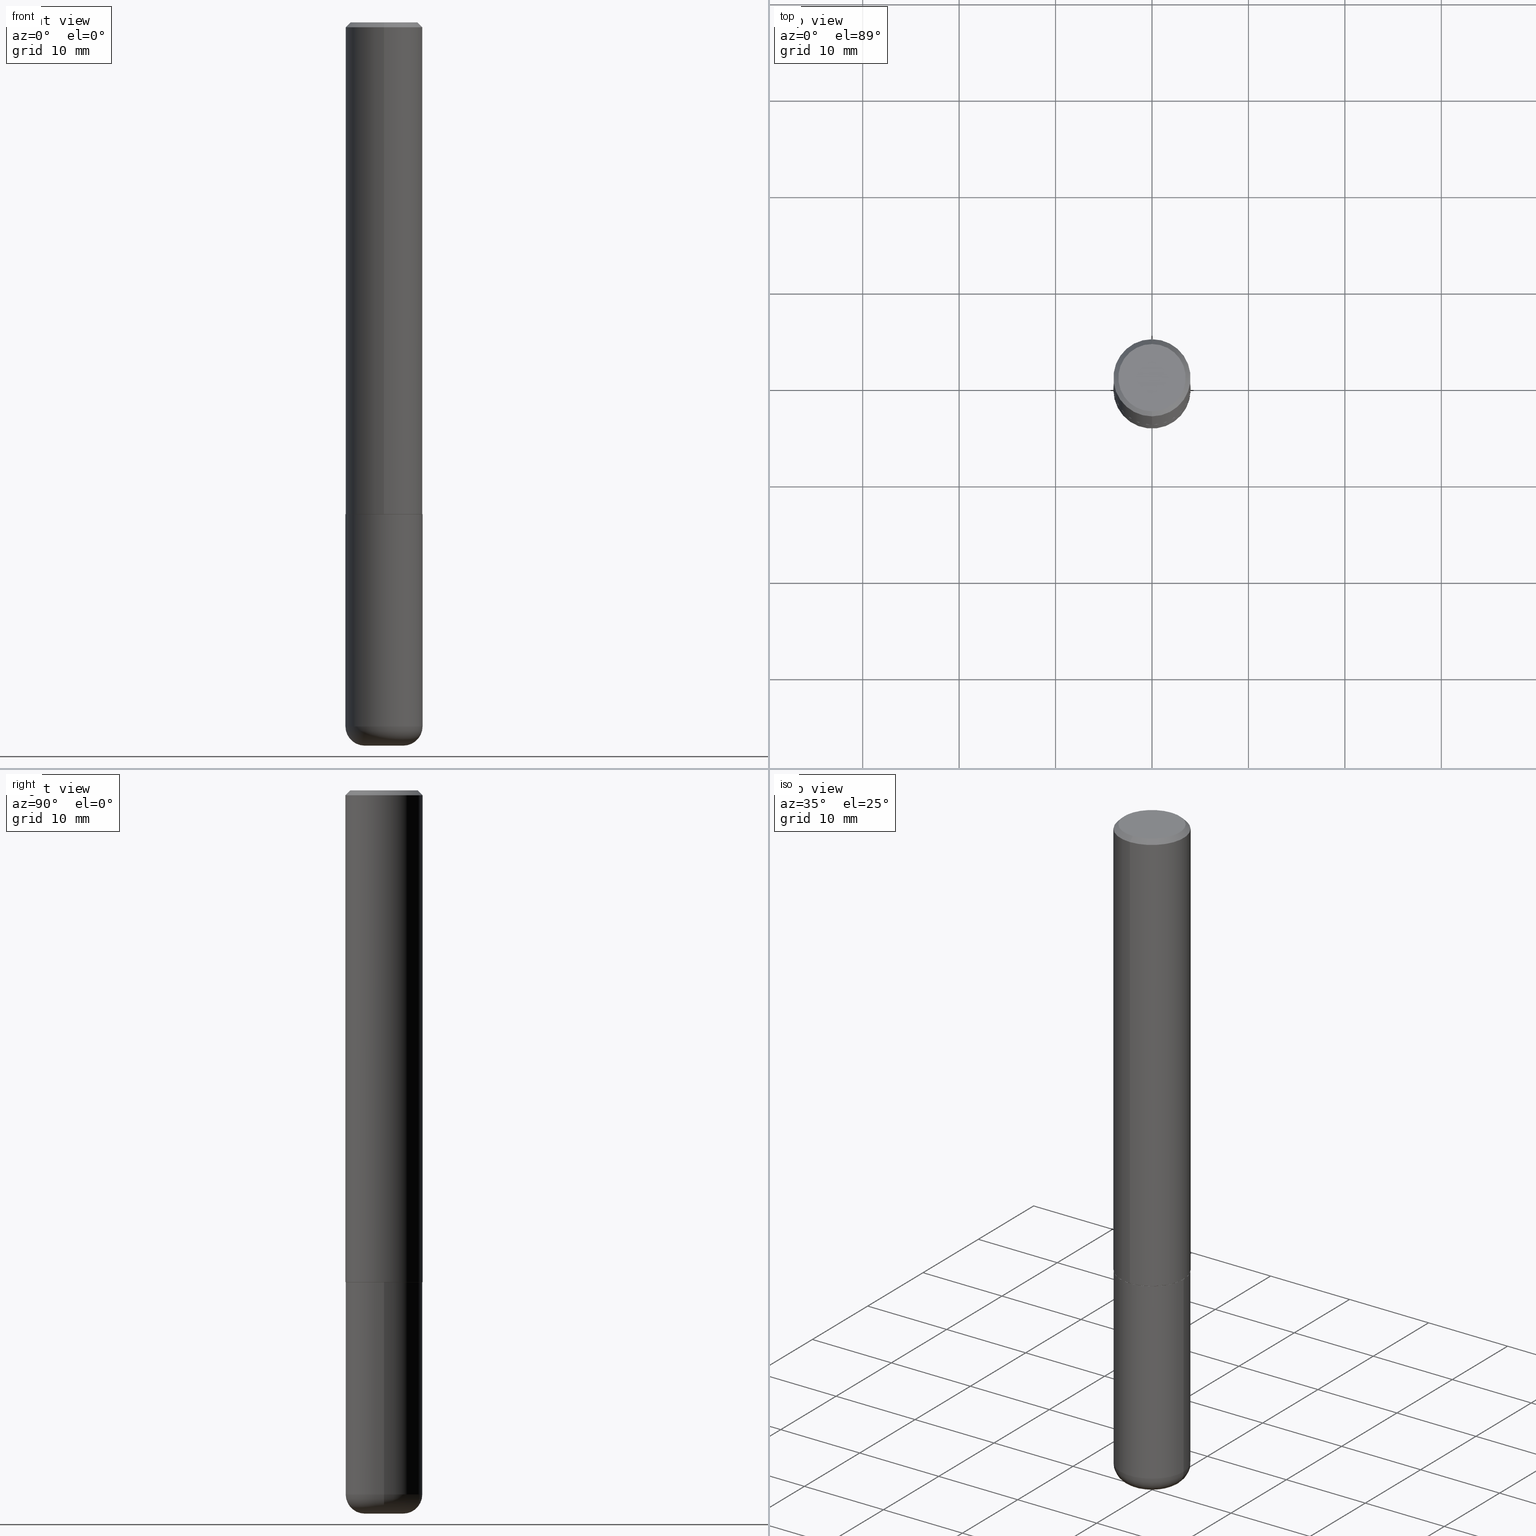
[diagram: canonical four-view strip — front | top / right | iso, engineering-drawing reading convention]
A machine part, canonical four-view strip (front | top / right | iso — engineering-drawing reading convention). The complete STEP part file that produces these views, byte-faithful:
ISO-10303-21;
HEADER;
FILE_DESCRIPTION (( 'STEP AP203' ),
    '1' );
FILE_NAME ('47508.STEP',
    '2024-03-06T05:03:27',
    ( '' ),
    ( '' ),
    'SwSTEP 2.0',
    'SolidWorks 2023',
    '' );
FILE_SCHEMA (( 'CONFIG_CONTROL_DESIGN' ));
ENDSEC;

DATA;
#1 = CARTESIAN_POINT ( 'NONE',  ( -0.1575000000000000011, -7.403601139293960452E-15, -2.007899999999999796 ) ) ;
#2 = AXIS2_PLACEMENT_3D ( 'NONE', #196, #333, #367 ) ;
#3 = CYLINDRICAL_SURFACE ( 'NONE', #88, 0.1575000000000000011 ) ;
#4 = VERTEX_POINT ( 'NONE', #314 ) ;
#5 = DIRECTION ( 'NONE',  ( 1.000000000000000000, -6.982962677686263555E-15, 4.883557194083111780E-29 ) ) ;
#6 = DIRECTION ( 'NONE',  ( 1.000000000000000000, -6.982962677686268288E-15, 0.000000000000000000 ) ) ;
#7 = ADVANCED_FACE ( 'NONE', ( #147 ), #275, .F. ) ;
#8 = DIRECTION ( 'NONE',  ( -2.444729828315544280E-29, 3.492539597212409932E-15, 1.000000000000000000 ) ) ;
#9 = ORIENTED_EDGE ( 'NONE', *, *, #217, .T. ) ;
#10 = VECTOR ( 'NONE', #96, 39.37007874015748143 ) ;
#11 = APPROVAL_PERSON_ORGANIZATION ( #50, #362, #235 ) ;
#12 = VERTEX_POINT ( 'NONE', #174 ) ;
#13 = ORIENTED_EDGE ( 'NONE', *, *, #44, .F. ) ;
#14 = FACE_OUTER_BOUND ( 'NONE', #27, .T. ) ;
#15 = DIMENSIONAL_EXPONENTS ( 1.000000000000000000, 0.000000000000000000, 0.000000000000000000, 0.000000000000000000, 0.000000000000000000, 0.000000000000000000, 0.000000000000000000 ) ;
#16 = EDGE_CURVE ( 'NONE', #236, #85, #343, .T. ) ;
#17 = ORIENTED_EDGE ( 'NONE', *, *, #361, .F. ) ;
#18 = VECTOR ( 'NONE', #61, 39.37007874015748143 ) ;
#19 = SHAPE_DEFINITION_REPRESENTATION ( #41, #183 ) ;
#20 = AXIS2_PLACEMENT_3D ( 'NONE', #76, #273, #201 ) ;
#21 = VERTEX_POINT ( 'NONE', #92 ) ;
#22 = PLANE ( 'NONE',  #175 ) ;
#23 = PRODUCT ( '47508', '47508', '', ( #280 ) ) ;
#24 = EDGE_CURVE ( 'NONE', #266, #253, #404, .T. ) ;
#25 = CC_DESIGN_PERSON_AND_ORGANIZATION_ASSIGNMENT ( #315, #28, ( #23 ) ) ;
#26 = DIRECTION ( 'NONE',  ( -2.444729828315544280E-29, 3.492539597212409932E-15, 1.000000000000000000 ) ) ;
#27 = EDGE_LOOP ( 'NONE', ( #402, #150, #73, #220 ) ) ;
#28 = PERSON_AND_ORGANIZATION_ROLE ( 'design_owner' ) ;
#29 = CARTESIAN_POINT ( 'NONE',  ( 0.1575000000000000011, -1.099816621735586889E-15, 7.679978421878598033E-30 ) ) ;
#30 = AXIS2_PLACEMENT_3D ( 'NONE', #395, #332, #145 ) ;
#31 = DIRECTION ( 'NONE',  ( -2.445468806185136597E-29, 3.491481338843145583E-15, 1.000000000000000000 ) ) ;
#32 = APPROVAL_DATE_TIME ( #215, #352 ) ;
#33 = DIRECTION ( 'NONE',  ( -2.444729828315544280E-29, 3.492539597212409932E-15, 1.000000000000000000 ) ) ;
#34 = PERSON_AND_ORGANIZATION_ROLE ( 'creator' ) ;
#35 = DIRECTION ( 'NONE',  ( 2.444729828315543719E-29, -3.492539597212410327E-15, -1.000000000000000000 ) ) ;
#36 = PERSON_AND_ORGANIZATION ( #366, #126 ) ;
#37 = PRODUCT_DEFINITION_FORMATION_WITH_SPECIFIED_SOURCE ( 'ANY', '', #23, .NOT_KNOWN. ) ;
#38 = FACE_OUTER_BOUND ( 'NONE', #83, .T. ) ;
#39 = CARTESIAN_POINT ( 'NONE',  ( 4.910256815939135309E-29, -7.010545380263150922E-15, -2.007899999999999796 ) ) ;
#40 = CARTESIAN_POINT ( 'NONE',  ( 4.910256815939135309E-29, -7.010545380263150922E-15, -2.007899999999999796 ) ) ;
#41 = PRODUCT_DEFINITION_SHAPE ( 'NONE', 'NONE',  #161 ) ;
#42 = LINE ( 'NONE', #230, #54 ) ;
#43 = TOROIDAL_SURFACE ( 'NONE', #101, 0.07879999999999999505, 0.07869999999999995055 ) ;
#44 = EDGE_CURVE ( 'NONE', #12, #240, #308, .T. ) ;
#45 = CARTESIAN_POINT ( 'NONE',  ( 0.000000000000000000, 0.000000000000000000, 0.000000000000000000 ) ) ;
#46 = CYLINDRICAL_SURFACE ( 'NONE', #206, 0.1575000000000001399 ) ;
#47 = PERSON_AND_ORGANIZATION_ROLE ( 'design_supplier' ) ;
#48 = ORIENTED_EDGE ( 'NONE', *, *, #136, .F. ) ;
#49 = EDGE_CURVE ( 'NONE', #85, #236, #189, .T. ) ;
#50 = PERSON_AND_ORGANIZATION ( #366, #126 ) ;
#51 = ORIENTED_EDGE ( 'NONE', *, *, #192, .F. ) ;
#52 = ORIENTED_EDGE ( 'NONE', *, *, #170, .T. ) ;
#53 = CARTESIAN_POINT ( 'NONE',  ( 4.908773022274780866E-29, -7.012670257242796607E-15, -2.007899999999999796 ) ) ;
#54 = VECTOR ( 'NONE', #168, 39.37007874015748143 ) ;
#55 = EDGE_CURVE ( 'NONE', #240, #290, #169, .T. ) ;
#56 = DATE_AND_TIME ( #409, #142 ) ;
#57 = CARTESIAN_POINT ( 'NONE',  ( 4.889459656631096617E-31, -6.985079194424830218E-17, -0.02000000000000003511 ) ) ;
#58 = FACE_OUTER_BOUND ( 'NONE', #114, .T. ) ;
#59 = DIRECTION ( 'NONE',  ( 0.000000000000000000, 0.000000000000000000, 1.000000000000000000 ) ) ;
#60 = DIRECTION ( 'NONE',  ( -6.982962677686265922E-15, -1.000000000000000000, 3.492539597212410327E-15 ) ) ;
#61 = DIRECTION ( 'NONE',  ( -2.444729828315544280E-29, 3.492539597212410327E-15, 1.000000000000000000 ) ) ;
#62 = EDGE_CURVE ( 'NONE', #4, #286, #264, .T. ) ;
#63 = DIRECTION ( 'NONE',  ( -6.982962677686264344E-15, -1.000000000000000000, 3.496114991891764787E-15 ) ) ;
#64 = COORDINATED_UNIVERSAL_TIME_OFFSET ( 5, 0, .BEHIND. ) ;
#65 = EDGE_LOOP ( 'NONE', ( #178, #91 ) ) ;
#66 = ADVANCED_FACE ( 'NONE', ( #98 ), #194, .F. ) ;
#67 = CALENDAR_DATE ( 2024, 6, 3 ) ;
#68 = AXIS2_PLACEMENT_3D ( 'NONE', #403, #117, #211 ) ;
#69 =( GEOMETRIC_REPRESENTATION_CONTEXT ( 3 ) GLOBAL_UNCERTAINTY_ASSIGNED_CONTEXT ( ( #299 ) ) GLOBAL_UNIT_ASSIGNED_CONTEXT ( ( #262, #358, #335 ) ) REPRESENTATION_CONTEXT ( 'NONE', 'WORKASPACE' ) );
#70 = FACE_OUTER_BOUND ( 'NONE', #209, .T. ) ;
#71 = CARTESIAN_POINT ( 'NONE',  ( 1.119104808822158392E-15, 0.1575000000000001399, -5.500749865609550376E-16 ) ) ;
#72 = EDGE_CURVE ( 'NONE', #411, #266, #81, .T. ) ;
#73 = ORIENTED_EDGE ( 'NONE', *, *, #207, .T. ) ;
#74 = AXIS2_PLACEMENT_3D ( 'NONE', #153, #349, #185 ) ;
#75 = AXIS2_PLACEMENT_3D ( 'NONE', #125, #322, #258 ) ;
#76 = CARTESIAN_POINT ( 'NONE',  ( 4.889459656631096617E-31, -6.985079194424830218E-17, -0.02000000000000003511 ) ) ;
#77 = DIRECTION ( 'NONE',  ( 7.105427357601001859E-15, 1.000000000000000000, -3.491481338843145583E-15 ) ) ;
#78 = ADVANCED_FACE ( 'NONE', ( #38 ), #3, .T. ) ;
#79 = EDGE_LOOP ( 'NONE', ( #375, #371, #119, #342 ) ) ;
#80 = DIRECTION ( 'NONE',  ( 1.000000000000000000, -6.982962677686265922E-15, 4.876176775795935232E-29 ) ) ;
#81 = CIRCLE ( 'NONE', #295, 0.1565000000000000002 ) ;
#82 = AXIS2_PLACEMENT_3D ( 'NONE', #57, #26, #407 ) ;
#83 = EDGE_LOOP ( 'NONE', ( #271, #277, #312, #123 ) ) ;
#84 = APPROVAL_ROLE ( '' ) ;
#85 = VERTEX_POINT ( 'NONE', #385 ) ;
#86 = EDGE_LOOP ( 'NONE', ( #305, #52, #412, #146 ) ) ;
#87 = LINE ( 'NONE', #29, #398 ) ;
#88 = AXIS2_PLACEMENT_3D ( 'NONE', #355, #135, #259 ) ;
#89 = LOCAL_TIME ( 0, 3, 27.00000000000000000, #223 ) ;
#90 = DIRECTION ( 'NONE',  ( -2.445468806185136877E-29, 3.491481338843145188E-15, 1.000000000000000000 ) ) ;
#91 = ORIENTED_EDGE ( 'NONE', *, *, #72, .F. ) ;
#92 = CARTESIAN_POINT ( 'NONE',  ( 1.119104808822183439E-15, 0.1574999999999932287, -2.006899999999999906 ) ) ;
#93 = DESIGN_CONTEXT ( 'detailed design', #116, 'design' ) ;
#94 = CALENDAR_DATE ( 2024, 6, 3 ) ;
#95 = EDGE_CURVE ( 'NONE', #229, #290, #370, .T. ) ;
#96 = DIRECTION ( 'NONE',  ( -2.445468806185136877E-29, 3.491481338843145188E-15, 1.000000000000000000 ) ) ;
#97 = VECTOR ( 'NONE', #191, 39.37007874015748143 ) ;
#98 = FACE_OUTER_BOUND ( 'NONE', #208, .T. ) ;
#99 = DIRECTION ( 'NONE',  ( 4.937700262164545676E-15, 0.7071067811865447972, -0.7071067811865502373 ) ) ;
#100 = ORIENTED_EDGE ( 'NONE', *, *, #380, .T. ) ;
#101 = AXIS2_PLACEMENT_3D ( 'NONE', #267, #364, #5 ) ;
#102 = CARTESIAN_POINT ( 'NONE',  ( 4.889459656631096617E-31, -6.985079194424830218E-17, -0.02000000000000003511 ) ) ;
#103 = CARTESIAN_POINT ( 'NONE',  ( 7.028521895856700897E-29, -1.003486651596908519E-14, -2.874099999999999877 ) ) ;
#104 = CARTESIAN_POINT ( 'NONE',  ( 0.07879999999999999505, -1.058512397497076362E-14, -2.874099999999999877 ) ) ;
#105 = CARTESIAN_POINT ( 'NONE',  ( 0.000000000000000000, 0.000000000000000000, 0.000000000000000000 ) ) ;
#106 = CLOSED_SHELL ( 'NONE', ( #347, #392, #399, #334, #113, #128, #7, #66 ) ) ;
#107 = DIRECTION ( 'NONE',  ( -6.982962677686266711E-15, -1.000000000000000000, 3.491481338843145583E-15 ) ) ;
#108 = ADVANCED_FACE ( 'NONE', ( #70 ), #317, .T. ) ;
#109 = CYLINDRICAL_SURFACE ( 'NONE', #310, 0.1575000000000000011 ) ;
#110 = ORIENTED_EDGE ( 'NONE', *, *, #49, .F. ) ;
#111 = DIRECTION ( 'NONE',  ( 5.024295867788490741E-15, 0.7071067811866103003, 0.7071067811864847341 ) ) ;
#112 = AXIS2_PLACEMENT_3D ( 'NONE', #228, #227, #397 ) ;
#113 = ADVANCED_FACE ( 'NONE', ( #388 ), #324, .T. ) ;
#114 = EDGE_LOOP ( 'NONE', ( #239, #17 ) ) ;
#115 = ORIENTED_EDGE ( 'NONE', *, *, #192, .T. ) ;
#116 = APPLICATION_CONTEXT ( 'configuration controlled 3d designs of mechanical parts and assemblies' ) ;
#117 = DIRECTION ( 'NONE',  ( -2.445468806185136597E-29, 3.491481338843145583E-15, 1.000000000000000000 ) ) ;
#118 = APPROVAL_DATE_TIME ( #309, #270 ) ;
#119 = ORIENTED_EDGE ( 'NONE', *, *, #24, .T. ) ;
#120 = CARTESIAN_POINT ( 'NONE',  ( 0.07880000000000000893, -1.085990355633771696E-14, -2.952799999999999869 ) ) ;
#121 = AXIS2_PLACEMENT_3D ( 'NONE', #363, #77, #300 ) ;
#122 = APPROVAL_STATUS ( 'not_yet_approved' ) ;
#123 = ORIENTED_EDGE ( 'NONE', *, *, #207, .F. ) ;
#124 = CARTESIAN_POINT ( 'NONE',  ( -6.786541213832790321E-45, 9.695248793097192351E-31, 2.775988223823005522E-16 ) ) ;
#125 = CARTESIAN_POINT ( 'NONE',  ( 4.910256815939135309E-29, -7.010545380263150922E-15, -2.007899999999999796 ) ) ;
#126 = ORGANIZATION ( 'UNSPECIFIED', 'UNSPECIFIED', '' ) ;
#127 = MANIFOLD_SOLID_BREP ( 'Body-Move/Copy2[1]', #202 ) ;
#128 = ADVANCED_FACE ( 'NONE', ( #234 ), #231, .T. ) ;
#129 = DIRECTION ( 'NONE',  ( -2.445468806185136597E-29, 3.491481338843145583E-15, 1.000000000000000000 ) ) ;
#130 = CARTESIAN_POINT ( 'NONE',  ( 9.601573681818597005E-16, 0.1374999999999997335, -3.414247834255550788E-16 ) ) ;
#131 = ORIENTED_EDGE ( 'NONE', *, *, #95, .T. ) ;
#132 = AXIS2_PLACEMENT_3D ( 'NONE', #103, #187, #294 ) ;
#133 = CIRCLE ( 'NONE', #30, 0.07880000000000000893 ) ;
#134 = DIRECTION ( 'NONE',  ( -1.000000000000000000, 6.982962677686265922E-15, -4.876176775795935793E-29 ) ) ;
#135 = DIRECTION ( 'NONE',  ( -2.445468806185136597E-29, 3.491481338843145583E-15, 1.000000000000000000 ) ) ;
#136 = EDGE_CURVE ( 'NONE', #253, #229, #281, .T. ) ;
#137 = CARTESIAN_POINT ( 'NONE',  ( 1.115552095143406798E-15, 0.1564999999999929781, -2.007900000000000240 ) ) ;
#138 = APPLICATION_PROTOCOL_DEFINITION ( 'international standard', 'config_control_design', 1994, #162 ) ;
#139 = ORIENTED_EDGE ( 'NONE', *, *, #44, .T. ) ;
#140 = DIRECTION ( 'NONE',  ( 1.000000000000000000, -6.982962677686273021E-15, 0.000000000000000000 ) ) ;
#141 = AXIS2_PLACEMENT_3D ( 'NONE', #320, #31, #157 ) ;
#142 = LOCAL_TIME ( 0, 3, 27.00000000000000000, #238 ) ;
#143 = CARTESIAN_POINT ( 'NONE',  ( 0.000000000000000000, 0.000000000000000000, 0.000000000000000000 ) ) ;
#144 = ORIENTED_EDGE ( 'NONE', *, *, #278, .T. ) ;
#145 = DIRECTION ( 'NONE',  ( 1.000000000000000000, -6.982962677686277755E-15, 0.000000000000000000 ) ) ;
#146 = ORIENTED_EDGE ( 'NONE', *, *, #217, .F. ) ;
#147 = FACE_OUTER_BOUND ( 'NONE', #65, .T. ) ;
#148 = AXIS2_PLACEMENT_3D ( 'NONE', #53, #250, #378 ) ;
#149 = CONICAL_SURFACE ( 'NONE', #112, 0.1565000000000000002, 0.7853981633975336552 ) ;
#150 = ORIENTED_EDGE ( 'NONE', *, *, #16, .T. ) ;
#151 = VERTEX_POINT ( 'NONE', #120 ) ;
#152 = ORIENTED_EDGE ( 'NONE', *, *, #55, .F. ) ;
#153 = CARTESIAN_POINT ( 'NONE',  ( -6.786541213832790321E-45, 9.695248793097192351E-31, 2.775988223823005522E-16 ) ) ;
#154 = SECURITY_CLASSIFICATION_LEVEL ( 'unclassified' ) ;
#155 = CARTESIAN_POINT ( 'NONE',  ( -1.099816621735539360E-15, -0.1575000000000072453, -2.006899999999999018 ) ) ;
#156 = ORIENTED_EDGE ( 'NONE', *, *, #16, .F. ) ;
#157 = DIRECTION ( 'NONE',  ( 1.000000000000000000, -6.982962677686261977E-15, 0.000000000000000000 ) ) ;
#158 = ORIENTED_EDGE ( 'NONE', *, *, #408, .F. ) ;
#159 = PERSON_AND_ORGANIZATION_ROLE ( 'creator' ) ;
#160 = DIRECTION ( 'NONE',  ( 2.444729828315544280E-29, -3.492539597212409932E-15, -1.000000000000000000 ) ) ;
#161 = PRODUCT_DEFINITION ( 'UNKNOWN', '', #37, #93 ) ;
#162 = APPLICATION_CONTEXT ( 'configuration controlled 3d designs of mechanical parts and assemblies' ) ;
#163 = LOCAL_TIME ( 0, 3, 27.00000000000000000, #173 ) ;
#164 = APPROVAL_STATUS ( 'not_yet_approved' ) ;
#165 = DIRECTION ( 'NONE',  ( 2.438088387897960049E-29, -3.491481338843145188E-15, -1.000000000000000000 ) ) ;
#166 = DIRECTION ( 'NONE',  ( -2.444729828315544280E-29, 3.492539597212409932E-15, 1.000000000000000000 ) ) ;
#167 = AXIS2_PLACEMENT_3D ( 'NONE', #102, #160, #396 ) ;
#168 = DIRECTION ( 'NONE',  ( -4.851104656540961908E-15, -0.7071067811865496822, -0.7071067811865453523 ) ) ;
#169 = LINE ( 'NONE', #328, #256 ) ;
#170 = EDGE_CURVE ( 'NONE', #21, #253, #198, .T. ) ;
#171 = LENGTH_MEASURE_WITH_UNIT ( LENGTH_MEASURE( 0.02539999999999999897 ), #268 );
#172 = AXIS2_PLACEMENT_3D ( 'NONE', #323, #33, #354 ) ;
#173 = COORDINATED_UNIVERSAL_TIME_OFFSET ( 5, 0, .BEHIND. ) ;
#174 = CARTESIAN_POINT ( 'NONE',  ( -1.011923454671299856E-15, -0.1374999999999997335, 7.578230169990059811E-16 ) ) ;
#175 = AXIS2_PLACEMENT_3D ( 'NONE', #346, #368, #210 ) ;
#176 = CARTESIAN_POINT ( 'NONE',  ( -1.099816621735587677E-15, -0.1575000000000001399, 5.500749865609550376E-16 ) ) ;
#177 = DATE_TIME_ROLE ( 'classification_date' ) ;
#178 = ORIENTED_EDGE ( 'NONE', *, *, #260, .F. ) ;
#179 = DIRECTION ( 'NONE',  ( 1.000000000000000000, 0.000000000000000000, 0.000000000000000000 ) ) ;
#180 = EDGE_CURVE ( 'NONE', #236, #286, #311, .T. ) ;
#181 = ORIENTED_EDGE ( 'NONE', *, *, #55, .T. ) ;
#182 = CARTESIAN_POINT ( 'NONE',  ( 1.029986994958723590E-15, 0.1374999999999997335, -2.026253722344048274E-16 ) ) ;
#183 = ADVANCED_BREP_SHAPE_REPRESENTATION ( '47508', ( #127, #263, #252 ), #69 ) ;
#184 = CIRCLE ( 'NONE', #225, 0.07880000000000000893 ) ;
#185 = DIRECTION ( 'NONE',  ( -6.982962677686265922E-15, -1.000000000000000000, 3.492539597212410327E-15 ) ) ;
#186 = ADVANCED_FACE ( 'NONE', ( #58 ), #22, .T. ) ;
#187 = DIRECTION ( 'NONE',  ( -2.445468806185136597E-29, 3.491481338843145583E-15, 1.000000000000000000 ) ) ;
#188 = DIRECTION ( 'NONE',  ( -2.445468806185136597E-29, 3.491481338843145583E-15, 1.000000000000000000 ) ) ;
#189 = CIRCLE ( 'NONE', #141, 0.1575000000000000011 ) ;
#190 = DATE_TIME_ROLE ( 'creation_date' ) ;
#191 = DIRECTION ( 'NONE',  ( -2.444729828315544280E-29, 3.492539597212410327E-15, 1.000000000000000000 ) ) ;
#192 = EDGE_CURVE ( 'NONE', #240, #12, #416, .T. ) ;
#193 = LINE ( 'NONE', #71, #97 ) ;
#194 = PLANE ( 'NONE',  #359 ) ;
#195 = DIRECTION ( 'NONE',  ( -2.445468806185136597E-29, 3.491481338843145583E-15, 1.000000000000000000 ) ) ;
#196 = CARTESIAN_POINT ( 'NONE',  ( 0.000000000000000000, 0.000000000000000000, 0.000000000000000000 ) ) ;
#197 = AXIS2_PLACEMENT_3D ( 'NONE', #345, #237, #313 ) ;
#198 = CIRCLE ( 'NONE', #197, 0.1575000000000002232 ) ;
#199 = CIRCLE ( 'NONE', #172, 0.1575000000000002232 ) ;
#200 = DIRECTION ( 'NONE',  ( -6.982962677686265133E-15, -1.000000000000000000, 3.492539597212409932E-15 ) ) ;
#201 = DIRECTION ( 'NONE',  ( 6.982962677686264344E-15, 1.000000000000000000, -3.496114991891764787E-15 ) ) ;
#202 = CLOSED_SHELL ( 'NONE', ( #78, #381, #319, #336, #108, #186 ) ) ;
#203 = CONICAL_SURFACE ( 'NONE', #167, 0.1575000000000000289, 0.7853981633974479459 ) ;
#204 = DIRECTION ( 'NONE',  ( -6.982962677686265922E-15, -1.000000000000000000, 3.492539597212410327E-15 ) ) ;
#205 = ORIENTED_EDGE ( 'NONE', *, *, #95, .F. ) ;
#206 = AXIS2_PLACEMENT_3D ( 'NONE', #143, #8, #200 ) ;
#207 = EDGE_CURVE ( 'NONE', #85, #4, #87, .T. ) ;
#208 = EDGE_LOOP ( 'NONE', ( #115, #139 ) ) ;
#209 = EDGE_LOOP ( 'NONE', ( #296, #287, #100, #156 ) ) ;
#210 = DIRECTION ( 'NONE',  ( -1.000000000000000000, 6.982962677686265922E-15, -4.876176775795935793E-29 ) ) ;
#211 = DIRECTION ( 'NONE',  ( 1.000000000000000000, -6.982962677686261977E-15, 0.000000000000000000 ) ) ;
#212 = APPROVAL_DATE_TIME ( #307, #362 ) ;
#213 = CARTESIAN_POINT ( 'NONE',  ( -1.092833659057851571E-15, -0.1565000000000069946, -2.007899999999998908 ) ) ;
#214 = DIRECTION ( 'NONE',  ( -2.444729828315544280E-29, 3.492539597212409932E-15, 1.000000000000000000 ) ) ;
#215 = DATE_AND_TIME ( #94, #89 ) ;
#216 = ORIENTED_EDGE ( 'NONE', *, *, #325, .T. ) ;
#217 = EDGE_CURVE ( 'NONE', #290, #229, #338, .T. ) ;
#218 = CARTESIAN_POINT ( 'NONE',  ( -0.1575000000000000011, 1.119104808822157801E-15, -7.747322767151475583E-30 ) ) ;
#219 = CIRCLE ( 'NONE', #350, 0.07869999999999996443 ) ;
#220 = ORIENTED_EDGE ( 'NONE', *, *, #325, .F. ) ;
#221 = CARTESIAN_POINT ( 'NONE',  ( 4.908773022274780866E-29, -7.012670257242796607E-15, -2.007899999999999796 ) ) ;
#222 = CC_DESIGN_SECURITY_CLASSIFICATION ( #329, ( #37 ) ) ;
#223 = COORDINATED_UNIVERSAL_TIME_OFFSET ( 5, 0, .BEHIND. ) ;
#224 = CC_DESIGN_DATE_AND_TIME_ASSIGNMENT ( #56, #177, ( #329 ) ) ;
#225 = AXIS2_PLACEMENT_3D ( 'NONE', #293, #188, #415 ) ;
#226 = LINE ( 'NONE', #391, #257 ) ;
#227 = DIRECTION ( 'NONE',  ( -2.444729828315544280E-29, 3.492539597212409932E-15, 1.000000000000000000 ) ) ;
#228 = CARTESIAN_POINT ( 'NONE',  ( 4.908773022274780866E-29, -7.012670257242796607E-15, -2.007899999999999796 ) ) ;
#229 = VERTEX_POINT ( 'NONE', #243 ) ;
#230 = CARTESIAN_POINT ( 'NONE',  ( -1.080528434649015779E-15, -0.1575000000000000844, -0.01999999999999948347 ) ) ;
#231 = CONICAL_SURFACE ( 'NONE', #148, 0.1565000000000000002, 0.7853981633975336552 ) ;
#232 = LOCAL_TIME ( 0, 3, 27.00000000000000000, #64 ) ;
#233 = DIRECTION ( 'NONE',  ( -2.444729828315543719E-29, 3.492539597212410327E-15, 1.000000000000000000 ) ) ;
#234 = FACE_OUTER_BOUND ( 'NONE', #79, .T. ) ;
#235 = APPROVAL_ROLE ( '' ) ;
#236 = VERTEX_POINT ( 'NONE', #373 ) ;
#237 = DIRECTION ( 'NONE',  ( -2.444729828315544280E-29, 3.492539597212409932E-15, 1.000000000000000000 ) ) ;
#238 = COORDINATED_UNIVERSAL_TIME_OFFSET ( 5, 0, .BEHIND. ) ;
#239 = ORIENTED_EDGE ( 'NONE', *, *, #291, .F. ) ;
#240 = VERTEX_POINT ( 'NONE', #182 ) ;
#241 = ORIENTED_EDGE ( 'NONE', *, *, #291, .T. ) ;
#242 = AXIS2_PLACEMENT_3D ( 'NONE', #124, #214, #60 ) ;
#243 = CARTESIAN_POINT ( 'NONE',  ( -1.080528434649015779E-15, -0.1575000000000000844, -0.01999999999999948347 ) ) ;
#244 = APPROVAL_PERSON_ORGANIZATION ( #285, #270, #84 ) ;
#245 = EDGE_LOOP ( 'NONE', ( #241, #382, #110, #401 ) ) ;
#246 = DIRECTION ( 'NONE',  ( -2.444729828315544280E-29, 3.492539597212409932E-15, 1.000000000000000000 ) ) ;
#247 = CARTESIAN_POINT ( 'NONE',  ( -1.092833659057851571E-15, -0.1565000000000069946, -2.007899999999998908 ) ) ;
#248 = APPROVAL_STATUS ( 'not_yet_approved' ) ;
#249 = CC_DESIGN_PERSON_AND_ORGANIZATION_ASSIGNMENT ( #414, #159, ( #37 ) ) ;
#250 = DIRECTION ( 'NONE',  ( -2.444729828315544280E-29, 3.492539597212409932E-15, 1.000000000000000000 ) ) ;
#251 = CIRCLE ( 'NONE', #75, 0.1575000000000000011 ) ;
#252 = AXIS2_PLACEMENT_3D ( 'NONE', #45, #59, #179 ) ;
#253 = VERTEX_POINT ( 'NONE', #155 ) ;
#254 = PRODUCT_RELATED_PRODUCT_CATEGORY ( 'detail', '', ( #23 ) ) ;
#255 = FACE_OUTER_BOUND ( 'NONE', #377, .T. ) ;
#256 = VECTOR ( 'NONE', #99, 39.37007874015748143 ) ;
#257 = VECTOR ( 'NONE', #111, 39.37007874015748143 ) ;
#258 = DIRECTION ( 'NONE',  ( 1.000000000000000000, -6.982962677686268288E-15, 0.000000000000000000 ) ) ;
#259 = DIRECTION ( 'NONE',  ( 1.000000000000000000, -6.982962677686265922E-15, 4.876176775795935232E-29 ) ) ;
#260 = EDGE_CURVE ( 'NONE', #266, #411, #344, .T. ) ;
#261 = CC_DESIGN_DATE_AND_TIME_ASSIGNMENT ( #326, #190, ( #161 ) ) ;
#262 =( CONVERSION_BASED_UNIT ( 'INCH', #171 ) LENGTH_UNIT ( ) NAMED_UNIT ( #15 ) );
#263 = MANIFOLD_SOLID_BREP ( 'Body-Move/Copy2[2]', #106 ) ;
#264 = CIRCLE ( 'NONE', #393, 0.1575000000000000011 ) ;
#265 = APPROVAL_PERSON_ORGANIZATION ( #36, #352, #330 ) ;
#266 = VERTEX_POINT ( 'NONE', #213 ) ;
#267 = CARTESIAN_POINT ( 'NONE',  ( 7.028521895856700897E-29, -1.003486651596908519E-14, -2.874099999999999877 ) ) ;
#268 =( LENGTH_UNIT ( ) NAMED_UNIT ( * ) SI_UNIT ( $, .METRE. ) );
#269 = EDGE_CURVE ( 'NONE', #21, #290, #193, .T. ) ;
#270 = APPROVAL ( #248, 'UNSPECIFIED' ) ;
#271 = ORIENTED_EDGE ( 'NONE', *, *, #49, .T. ) ;
#272 = EDGE_LOOP ( 'NONE', ( #13, #339, #131, #152 ) ) ;
#273 = DIRECTION ( 'NONE',  ( 2.444729828315544280E-29, -3.492539597212409932E-15, -1.000000000000000000 ) ) ;
#274 = PERSON_AND_ORGANIZATION ( #366, #126 ) ;
#275 = PLANE ( 'NONE',  #379 ) ;
#276 = VECTOR ( 'NONE', #410, 39.37007874015748143 ) ;
#277 = ORIENTED_EDGE ( 'NONE', *, *, #180, .T. ) ;
#278 = EDGE_CURVE ( 'NONE', #253, #21, #199, .T. ) ;
#279 = ORIENTED_EDGE ( 'NONE', *, *, #260, .T. ) ;
#280 = MECHANICAL_CONTEXT ( 'NONE', #162, 'mechanical' ) ;
#281 = LINE ( 'NONE', #176, #18 ) ;
#282 = ORIENTED_EDGE ( 'NONE', *, *, #269, .T. ) ;
#283 = EDGE_LOOP ( 'NONE', ( #144, #282, #205, #48 ) ) ;
#284 = CARTESIAN_POINT ( 'NONE',  ( 4.908773022274780866E-29, -7.012670257242796607E-15, -2.007899999999999796 ) ) ;
#285 = PERSON_AND_ORGANIZATION ( #366, #126 ) ;
#286 = VERTEX_POINT ( 'NONE', #1 ) ;
#287 = ORIENTED_EDGE ( 'NONE', *, *, #361, .T. ) ;
#288 = PERSON_AND_ORGANIZATION ( #366, #126 ) ;
#289 = CIRCLE ( 'NONE', #121, 0.07869999999999996443 ) ;
#290 = VERTEX_POINT ( 'NONE', #331 ) ;
#291 = EDGE_CURVE ( 'NONE', #151, #406, #184, .T. ) ;
#292 = CC_DESIGN_PERSON_AND_ORGANIZATION_ASSIGNMENT ( #288, #47, ( #37 ) ) ;
#293 = CARTESIAN_POINT ( 'NONE',  ( 7.220980290903470182E-29, -1.030964609733603853E-14, -2.952799999999999869 ) ) ;
#294 = DIRECTION ( 'NONE',  ( 1.000000000000000000, -6.982962677686263555E-15, 4.883557194083111780E-29 ) ) ;
#295 = AXIS2_PLACEMENT_3D ( 'NONE', #221, #418, #351 ) ;
#296 = ORIENTED_EDGE ( 'NONE', *, *, #413, .F. ) ;
#297 = CARTESIAN_POINT ( 'NONE',  ( -0.07880000000000000893, -9.332750064352005228E-15, -2.952799999999999869 ) ) ;
#298 = DIRECTION ( 'NONE',  ( 6.982962677686265922E-15, 1.000000000000000000, -3.492539597212410327E-15 ) ) ;
#299 = UNCERTAINTY_MEASURE_WITH_UNIT (LENGTH_MEASURE( 1.000000000000000082E-05 ), #262, 'distance_accuracy_value', 'NONE');
#300 = DIRECTION ( 'NONE',  ( -1.000000000000000000, 7.105427357600995548E-15, 0.000000000000000000 ) ) ;
#301 = FACE_OUTER_BOUND ( 'NONE', #272, .T. ) ;
#302 = AXIS2_PLACEMENT_3D ( 'NONE', #417, #166, #63 ) ;
#303 = LOCAL_TIME ( 0, 3, 27.00000000000000000, #369 ) ;
#304 = CC_DESIGN_PERSON_AND_ORGANIZATION_ASSIGNMENT ( #353, #34, ( #161 ) ) ;
#305 = ORIENTED_EDGE ( 'NONE', *, *, #269, .F. ) ;
#306 = CALENDAR_DATE ( 2024, 6, 3 ) ;
#307 = DATE_AND_TIME ( #374, #303 ) ;
#308 = CIRCLE ( 'NONE', #242, 0.1374999999999997335 ) ;
#309 = DATE_AND_TIME ( #306, #163 ) ;
#310 = AXIS2_PLACEMENT_3D ( 'NONE', #105, #195, #80 ) ;
#311 = LINE ( 'NONE', #218, #10 ) ;
#312 = ORIENTED_EDGE ( 'NONE', *, *, #62, .F. ) ;
#313 = DIRECTION ( 'NONE',  ( -6.982962677686265922E-15, -1.000000000000000000, 3.469013325287948560E-15 ) ) ;
#314 = CARTESIAN_POINT ( 'NONE',  ( 0.1575000000000000011, -8.110362001998737613E-15, -2.007899999999999796 ) ) ;
#315 = PERSON_AND_ORGANIZATION ( #366, #126 ) ;
#316 = APPLICATION_PROTOCOL_DEFINITION ( 'international standard', 'config_control_design', 1994, #116 ) ;
#317 = TOROIDAL_SURFACE ( 'NONE', #132, 0.07879999999999999505, 0.07869999999999995055 ) ;
#318 = CONICAL_SURFACE ( 'NONE', #20, 0.1575000000000000289, 0.7853981633974479459 ) ;
#319 = ADVANCED_FACE ( 'NONE', ( #255 ), #327, .F. ) ;
#320 = CARTESIAN_POINT ( 'NONE',  ( 7.028521895856700897E-29, -1.003486651596908519E-14, -2.874099999999999877 ) ) ;
#321 = EDGE_LOOP ( 'NONE', ( #158, #51, #181, #9 ) ) ;
#322 = DIRECTION ( 'NONE',  ( -2.445468806185136597E-29, 3.491481338843145583E-15, 1.000000000000000000 ) ) ;
#323 = CARTESIAN_POINT ( 'NONE',  ( 4.906328292446464760E-29, -7.009177717645583542E-15, -2.006899999999999462 ) ) ;
#324 = CYLINDRICAL_SURFACE ( 'NONE', #2, 0.1575000000000001399 ) ;
#325 = EDGE_CURVE ( 'NONE', #286, #4, #251, .T. ) ;
#326 = DATE_AND_TIME ( #67, #232 ) ;
#327 = PLANE ( 'NONE',  #386 ) ;
#328 = CARTESIAN_POINT ( 'NONE',  ( 1.099816621735587480E-15, 0.1574999999999999456, -0.02000000000000058328 ) ) ;
#329 = SECURITY_CLASSIFICATION ( '', '', #154 ) ;
#330 = APPROVAL_ROLE ( '' ) ;
#331 = CARTESIAN_POINT ( 'NONE',  ( 1.099816621735587480E-15, 0.1574999999999999456, -0.02000000000000058328 ) ) ;
#332 = DIRECTION ( 'NONE',  ( -2.445468806185136597E-29, 3.491481338843145583E-15, 1.000000000000000000 ) ) ;
#333 = DIRECTION ( 'NONE',  ( -2.444729828315544280E-29, 3.492539597212409932E-15, 1.000000000000000000 ) ) ;
#334 = ADVANCED_FACE ( 'NONE', ( #387 ), #203, .T. ) ;
#335 =( NAMED_UNIT ( * ) SI_UNIT ( $, .STERADIAN. ) SOLID_ANGLE_UNIT ( ) );
#336 = ADVANCED_FACE ( 'NONE', ( #14 ), #109, .T. ) ;
#337 = CC_DESIGN_PERSON_AND_ORGANIZATION_ASSIGNMENT ( #274, #405, ( #329 ) ) ;
#338 = CIRCLE ( 'NONE', #82, 0.1575000000000000289 ) ;
#339 = ORIENTED_EDGE ( 'NONE', *, *, #408, .T. ) ;
#340 = FACE_OUTER_BOUND ( 'NONE', #283, .T. ) ;
#341 = ORIENTED_EDGE ( 'NONE', *, *, #24, .F. ) ;
#342 = ORIENTED_EDGE ( 'NONE', *, *, #170, .F. ) ;
#343 = CIRCLE ( 'NONE', #68, 0.1575000000000000011 ) ;
#344 = CIRCLE ( 'NONE', #372, 0.1565000000000000002 ) ;
#345 = CARTESIAN_POINT ( 'NONE',  ( 4.906328292446464760E-29, -7.009177717645583542E-15, -2.006899999999999462 ) ) ;
#346 = CARTESIAN_POINT ( 'NONE',  ( 7.220980290903470182E-29, -1.030964609733603853E-14, -2.952799999999999869 ) ) ;
#347 = ADVANCED_FACE ( 'NONE', ( #360 ), #149, .T. ) ;
#348 = ORIENTED_EDGE ( 'NONE', *, *, #278, .F. ) ;
#349 = DIRECTION ( 'NONE',  ( -2.444729828315544280E-29, 3.492539597212409932E-15, 1.000000000000000000 ) ) ;
#350 = AXIS2_PLACEMENT_3D ( 'NONE', #104, #107, #140 ) ;
#351 = DIRECTION ( 'NONE',  ( -6.982962677686265922E-15, -1.000000000000000000, 3.491179544618866730E-15 ) ) ;
#352 = APPROVAL ( #164, 'UNSPECIFIED' ) ;
#353 = PERSON_AND_ORGANIZATION ( #366, #126 ) ;
#354 = DIRECTION ( 'NONE',  ( -6.982962677686265922E-15, -1.000000000000000000, 3.469013325287948560E-15 ) ) ;
#355 = CARTESIAN_POINT ( 'NONE',  ( 0.000000000000000000, 0.000000000000000000, 0.000000000000000000 ) ) ;
#356 = CC_DESIGN_APPROVAL ( #362, ( #329 ) ) ;
#357 = EDGE_CURVE ( 'NONE', #411, #21, #226, .T. ) ;
#358 =( NAMED_UNIT ( * ) PLANE_ANGLE_UNIT ( ) SI_UNIT ( $, .RADIAN. ) );
#359 = AXIS2_PLACEMENT_3D ( 'NONE', #130, #35, #298 ) ;
#360 = FACE_OUTER_BOUND ( 'NONE', #390, .T. ) ;
#361 = EDGE_CURVE ( 'NONE', #406, #151, #133, .T. ) ;
#362 = APPROVAL ( #122, 'UNSPECIFIED' ) ;
#363 = CARTESIAN_POINT ( 'NONE',  ( -0.07879999999999999505, -9.474958840190126376E-15, -2.874099999999999877 ) ) ;
#364 = DIRECTION ( 'NONE',  ( -2.445468806185136597E-29, 3.491481338843145583E-15, 1.000000000000000000 ) ) ;
#365 = CC_DESIGN_APPROVAL ( #352, ( #37 ) ) ;
#366 = PERSON ( 'UNSPECIFIED', 'UNSPECIFIED', 'UNSPECIFIED', ('UNSPECIFIED'), ('UNSPECIFIED'), ('UNSPECIFIED') ) ;
#367 = DIRECTION ( 'NONE',  ( -6.982962677686265133E-15, -1.000000000000000000, 3.492539597212409932E-15 ) ) ;
#368 = DIRECTION ( 'NONE',  ( 2.438088387897960049E-29, -3.491481338843145188E-15, -1.000000000000000000 ) ) ;
#369 = COORDINATED_UNIVERSAL_TIME_OFFSET ( 5, 0, .BEHIND. ) ;
#370 = CIRCLE ( 'NONE', #302, 0.1575000000000000289 ) ;
#371 = ORIENTED_EDGE ( 'NONE', *, *, #72, .T. ) ;
#372 = AXIS2_PLACEMENT_3D ( 'NONE', #284, #246, #376 ) ;
#373 = CARTESIAN_POINT ( 'NONE',  ( -0.1574999999999999456, -8.915761707146927585E-15, -2.874099999999999877 ) ) ;
#374 = CALENDAR_DATE ( 2024, 6, 3 ) ;
#375 = ORIENTED_EDGE ( 'NONE', *, *, #357, .F. ) ;
#376 = DIRECTION ( 'NONE',  ( -6.982962677686265922E-15, -1.000000000000000000, 3.491179544618866730E-15 ) ) ;
#377 = EDGE_LOOP ( 'NONE', ( #384, #216 ) ) ;
#378 = DIRECTION ( 'NONE',  ( -6.982962677686265922E-15, -1.000000000000000000, 3.491179544618866730E-15 ) ) ;
#379 = AXIS2_PLACEMENT_3D ( 'NONE', #400, #233, #204 ) ;
#380 = EDGE_CURVE ( 'NONE', #151, #85, #219, .T. ) ;
#381 = ADVANCED_FACE ( 'NONE', ( #389 ), #43, .T. ) ;
#382 = ORIENTED_EDGE ( 'NONE', *, *, #413, .T. ) ;
#383 = ORIENTED_EDGE ( 'NONE', *, *, #357, .T. ) ;
#384 = ORIENTED_EDGE ( 'NONE', *, *, #62, .T. ) ;
#385 = CARTESIAN_POINT ( 'NONE',  ( 0.1574999999999999456, -1.113468313770467030E-14, -2.874099999999999877 ) ) ;
#386 = AXIS2_PLACEMENT_3D ( 'NONE', #40, #165, #134 ) ;
#387 = FACE_OUTER_BOUND ( 'NONE', #321, .T. ) ;
#388 = FACE_OUTER_BOUND ( 'NONE', #86, .T. ) ;
#389 = FACE_OUTER_BOUND ( 'NONE', #245, .T. ) ;
#390 = EDGE_LOOP ( 'NONE', ( #279, #383, #348, #341 ) ) ;
#391 = CARTESIAN_POINT ( 'NONE',  ( 1.111999381464605505E-15, 0.1564999999999929781, -2.007900000000000240 ) ) ;
#392 = ADVANCED_FACE ( 'NONE', ( #340 ), #46, .T. ) ;
#393 = AXIS2_PLACEMENT_3D ( 'NONE', #39, #129, #6 ) ;
#394 = CC_DESIGN_APPROVAL ( #270, ( #161 ) ) ;
#395 = CARTESIAN_POINT ( 'NONE',  ( 7.220980290903470182E-29, -1.030964609733603853E-14, -2.952799999999999869 ) ) ;
#396 = DIRECTION ( 'NONE',  ( 6.982962677686264344E-15, 1.000000000000000000, -3.496114991891764787E-15 ) ) ;
#397 = DIRECTION ( 'NONE',  ( -6.982962677686265922E-15, -1.000000000000000000, 3.491179544618866730E-15 ) ) ;
#398 = VECTOR ( 'NONE', #90, 39.37007874015748143 ) ;
#399 = ADVANCED_FACE ( 'NONE', ( #301 ), #318, .T. ) ;
#400 = CARTESIAN_POINT ( 'NONE',  ( 4.908773022274780866E-29, -7.012670257242796607E-15, -2.007899999999999796 ) ) ;
#401 = ORIENTED_EDGE ( 'NONE', *, *, #380, .F. ) ;
#402 = ORIENTED_EDGE ( 'NONE', *, *, #180, .F. ) ;
#403 = CARTESIAN_POINT ( 'NONE',  ( 7.028521895856700897E-29, -1.003486651596908519E-14, -2.874099999999999877 ) ) ;
#404 = LINE ( 'NONE', #247, #276 ) ;
#405 = PERSON_AND_ORGANIZATION_ROLE ( 'classification_officer' ) ;
#406 = VERTEX_POINT ( 'NONE', #297 ) ;
#407 = DIRECTION ( 'NONE',  ( -6.982962677686264344E-15, -1.000000000000000000, 3.496114991891764787E-15 ) ) ;
#408 = EDGE_CURVE ( 'NONE', #12, #229, #42, .T. ) ;
#409 = CALENDAR_DATE ( 2024, 6, 3 ) ;
#410 = DIRECTION ( 'NONE',  ( -4.937700262164969294E-15, -0.7071067811866054154, 0.7071067811864896191 ) ) ;
#411 = VERTEX_POINT ( 'NONE', #137 ) ;
#412 = ORIENTED_EDGE ( 'NONE', *, *, #136, .T. ) ;
#413 = EDGE_CURVE ( 'NONE', #406, #236, #289, .T. ) ;
#414 = PERSON_AND_ORGANIZATION ( #366, #126 ) ;
#415 = DIRECTION ( 'NONE',  ( 1.000000000000000000, -6.982962677686277755E-15, 0.000000000000000000 ) ) ;
#416 = CIRCLE ( 'NONE', #74, 0.1374999999999997335 ) ;
#417 = CARTESIAN_POINT ( 'NONE',  ( 4.889459656631096617E-31, -6.985079194424830218E-17, -0.02000000000000003511 ) ) ;
#418 = DIRECTION ( 'NONE',  ( -2.444729828315544280E-29, 3.492539597212409932E-15, 1.000000000000000000 ) ) ;
ENDSEC;
END-ISO-10303-21;
